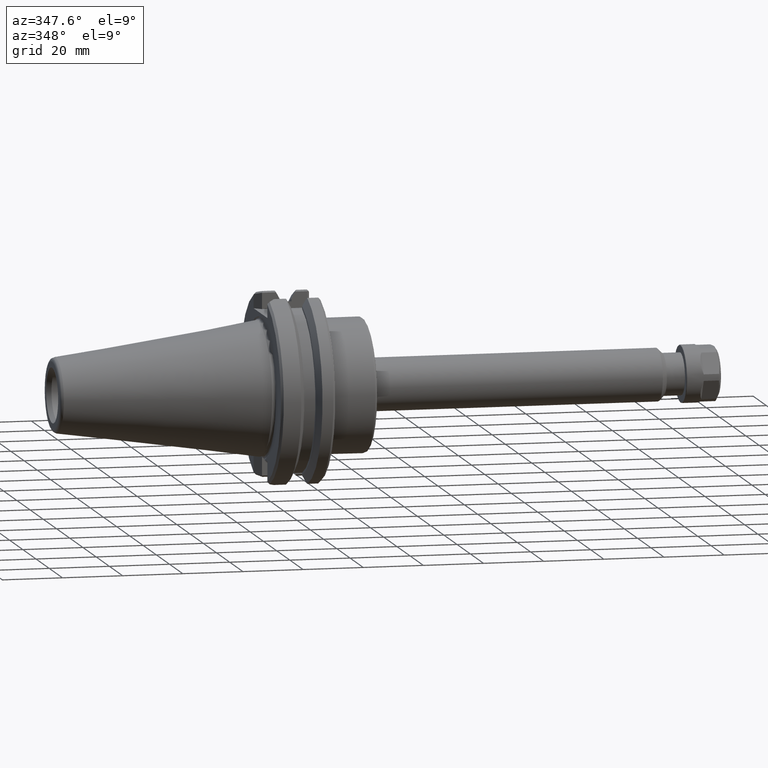
[diagram: clean part render]
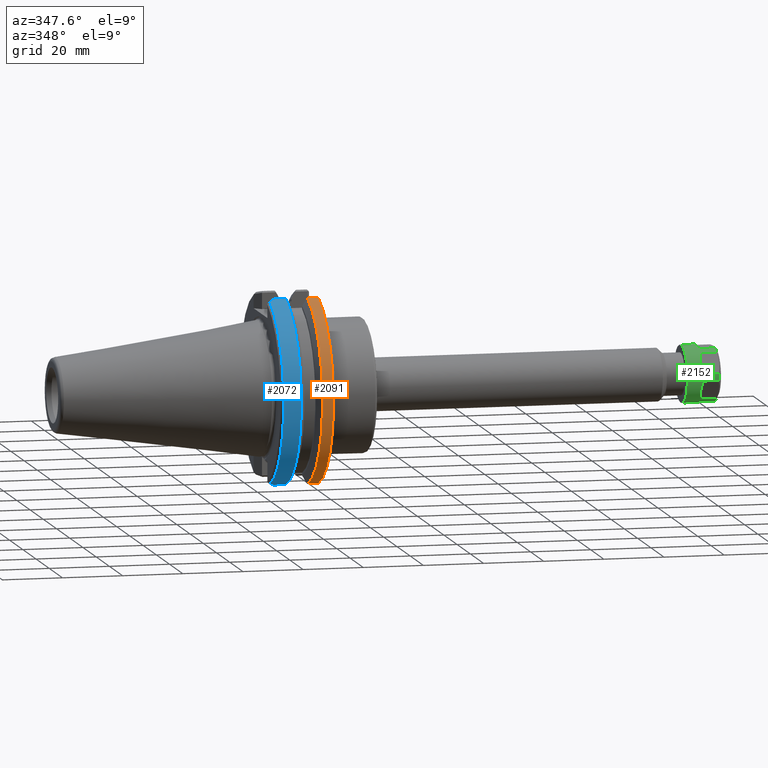
[diagram: same view with three faces highlighted in distinct colors, each labeled with its STEP entity id]
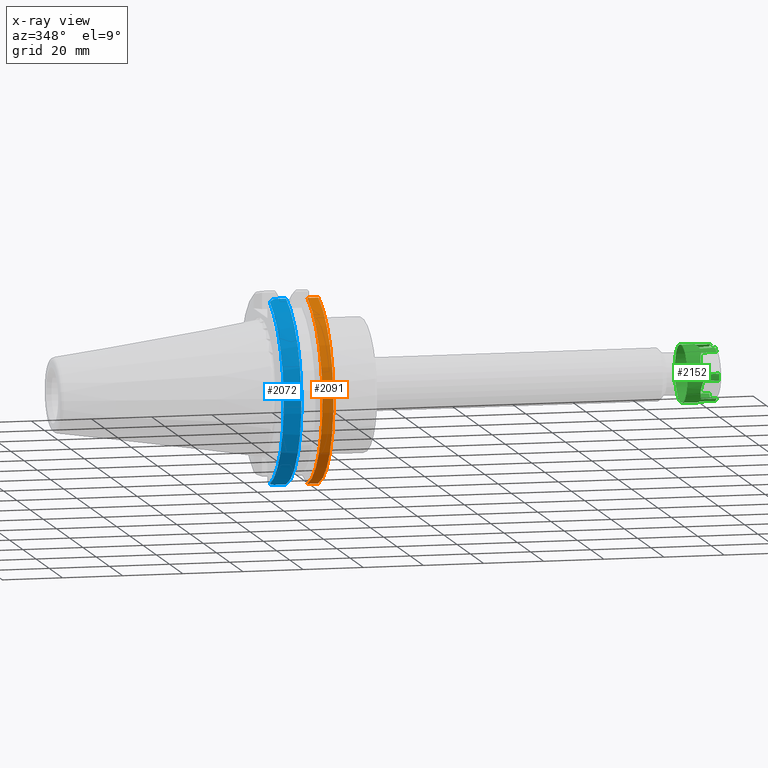
[diagram: x-ray of the same camera — body ghosted, the three highlighted faces saturated]
A machine part, auxiliary view with three faces highlighted in distinct colors.
The next image is the same camera in x-ray (body ghosted, the three faces saturated) — at least one of them is partly hidden behind the body in this view.
Their STEP definitions:

[orange] entity #2091 — the highlighted cylindrical surface (partial cylindrical patch) has radius 31.75 mm, axis along (1, 0, 0).
#135=CYLINDRICAL_SURFACE('',#2258,1.25);
#202=LINE('',#4090,#316);
#203=LINE('',#4098,#317);
#316=VECTOR('',#2625,0.142826127773348);
#317=VECTOR('',#2630,0.142826127773348);
#542=FACE_OUTER_BOUND('',#698,.T.);
#698=EDGE_LOOP('',(#1637,#1638,#1639,#1640));
#857=CIRCLE('',#2259,1.25);
#858=CIRCLE('',#2260,1.25);
#1039=VERTEX_POINT('',#4085);
#1040=VERTEX_POINT('',#4089);
#1041=VERTEX_POINT('',#4095);
#1042=VERTEX_POINT('',#4097);
#1274=EDGE_CURVE('',#1039,#1040,#202,.T.);
#1276=EDGE_CURVE('',#1041,#1039,#857,.T.);
#1277=EDGE_CURVE('',#1042,#1041,#203,.T.);
#1278=EDGE_CURVE('',#1042,#1040,#858,.T.);
#1637=ORIENTED_EDGE('',*,*,#1274,.F.);
#1638=ORIENTED_EDGE('',*,*,#1276,.F.);
#1639=ORIENTED_EDGE('',*,*,#1277,.F.);
#1640=ORIENTED_EDGE('',*,*,#1278,.T.);
#2091=ADVANCED_FACE('',(#542),#135,.T.);
#2258=AXIS2_PLACEMENT_3D('',#4094,#2626,#2627);
#2259=AXIS2_PLACEMENT_3D('',#4096,#2628,#2629);
#2260=AXIS2_PLACEMENT_3D('',#4099,#2631,#2632);
#2625=DIRECTION('',(-1.,0.,0.));
#2626=DIRECTION('center_axis',(1.,0.,0.));
#2627=DIRECTION('ref_axis',(-1.62451355720802E-13,1.,0.));
#2628=DIRECTION('center_axis',(1.,0.,0.));
#2629=DIRECTION('ref_axis',(1.62451355720802E-13,-1.,0.));
#2630=DIRECTION('',(1.,0.,0.));
#2631=DIRECTION('center_axis',(1.,0.,0.));
#2632=DIRECTION('ref_axis',(-1.62451355720802E-13,1.,0.));
#4085=CARTESIAN_POINT('',(0.72,-0.339628138321241,-1.20297661143534));
#4089=CARTESIAN_POINT('',(0.577173872226652,-0.339628138321241,-1.20297661143534));
#4090=CARTESIAN_POINT('',(0.3949,-0.339628138321241,-1.20297661143534));
#4094=CARTESIAN_POINT('Origin',(0.3949,0.,0.));
#4095=CARTESIAN_POINT('',(0.72,-0.339628138321233,1.20297661143534));
#4096=CARTESIAN_POINT('Origin',(0.72,0.,0.));
#4097=CARTESIAN_POINT('',(0.577173872226652,-0.339628138321233,1.20297661143534));
#4098=CARTESIAN_POINT('',(0.3949,-0.339628138321233,1.20297661143534));
#4099=CARTESIAN_POINT('Origin',(0.577173872226652,0.,0.));

[blue] entity #2072 — the highlighted cylindrical surface (partial cylindrical patch) has radius 31.75 mm, axis along (1, 0, 0).
#133=CYLINDRICAL_SURFACE('',#2235,1.25);
#162=LINE('',#3600,#276);
#163=LINE('',#3604,#277);
#276=VECTOR('',#2541,0.159597161674143);
#277=VECTOR('',#2544,0.159597161674194);
#523=FACE_OUTER_BOUND('',#676,.T.);
#676=EDGE_LOOP('',(#1522,#1523,#1524,#1525,#1526,#1527));
#849=CIRCLE('',#2233,1.25);
#851=CIRCLE('',#2236,1.25);
#933=B_SPLINE_CURVE_WITH_KNOTS('',3,(#3542,#3543,#3544,#3545,#3546,#3547,
#3548,#3549,#3550,#3551,#3552,#3553,#3554,#3555,#3556,#3557,#3558,#3559,
#3560,#3561,#3562,#3563,#3564,#3565,#3566,#3567,#3568,#3569,#3570,#3571),
 .UNSPECIFIED.,.F.,.F.,(4,2,2,2,2,2,2,2,2,2,2,2,2,2,4),(-0.0522227980911079,
0.,0.0122537437452531,0.024502935585128,0.0367475313027496,0.0489874867959797,
0.061222758078536,0.073453301281127,0.0856790726525604,0.0979000285608856,
0.110116125494511,0.122327320063341,0.134533568999907,0.146734829160502,
0.201199831019126),.UNSPECIFIED.);
#935=B_SPLINE_CURVE_WITH_KNOTS('',3,(#3605,#3606,#3607,#3608,#3609,#3610,
#3611,#3612,#3613,#3614,#3615,#3616,#3617,#3618,#3619,#3620,#3621,#3622,
#3623,#3624,#3625,#3626,#3627,#3628,#3629,#3630,#3631,#3632,#3633,#3634),
 .UNSPECIFIED.,.F.,.F.,(4,2,2,2,2,2,2,2,2,2,2,2,2,2,4),(-0.0544650018586125,
0.,0.0122012601605769,0.0244075090971253,0.036618703665939,0.0488348005995456,
0.0610557565078532,0.07328152787927,0.0855120710818425,0.0977473423643818,
0.109987297857596,0.122231893575198,0.134481085415057,0.146734829160291,
0.198957627251415),.UNSPECIFIED.);
#984=VERTEX_POINT('',#3490);
#988=VERTEX_POINT('',#3535);
#992=VERTEX_POINT('',#3583);
#995=VERTEX_POINT('',#3599);
#996=VERTEX_POINT('',#3601);
#997=VERTEX_POINT('',#3603);
#1201=EDGE_CURVE('',#988,#984,#933,.T.);
#1206=EDGE_CURVE('',#984,#992,#849,.T.);
#1210=EDGE_CURVE('',#995,#988,#162,.T.);
#1211=EDGE_CURVE('',#995,#996,#851,.T.);
#1212=EDGE_CURVE('',#997,#996,#163,.T.);
#1213=EDGE_CURVE('',#992,#997,#935,.T.);
#1522=ORIENTED_EDGE('',*,*,#1201,.F.);
#1523=ORIENTED_EDGE('',*,*,#1210,.F.);
#1524=ORIENTED_EDGE('',*,*,#1211,.T.);
#1525=ORIENTED_EDGE('',*,*,#1212,.F.);
#1526=ORIENTED_EDGE('',*,*,#1213,.F.);
#1527=ORIENTED_EDGE('',*,*,#1206,.F.);
#2072=ADVANCED_FACE('',(#523),#133,.T.);
#2233=AXIS2_PLACEMENT_3D('',#3584,#2535,#2536);
#2235=AXIS2_PLACEMENT_3D('',#3598,#2539,#2540);
#2236=AXIS2_PLACEMENT_3D('',#3602,#2542,#2543);
#2535=DIRECTION('center_axis',(-1.,0.,0.));
#2536=DIRECTION('ref_axis',(1.62451355720802E-13,-1.,0.));
#2539=DIRECTION('center_axis',(1.,0.,0.));
#2540=DIRECTION('ref_axis',(-1.62451355720802E-13,1.,0.));
#2541=DIRECTION('',(-1.,0.,0.));
#2542=DIRECTION('center_axis',(-1.,0.,0.));
#2543=DIRECTION('ref_axis',(-1.62451355720802E-13,1.,0.));
#2544=DIRECTION('',(1.,0.,0.));
#3490=CARTESIAN_POINT('',(0.0698000001421842,-0.408458681238645,-1.18138118561317));
#3535=CARTESIAN_POINT('',(0.139928966099218,-0.339628138324565,-1.2029766114344));
#3542=CARTESIAN_POINT('Ctrl Pts',(0.139928966090103,-0.339628138337144,
-1.20297661152056));
#3543=CARTESIAN_POINT('Ctrl Pts',(0.135092466600187,-0.344382624246985,
-1.20163431041355));
#3544=CARTESIAN_POINT('Ctrl Pts',(0.13025979112037,-0.349131802536587,-1.20026307500953));
#3545=CARTESIAN_POINT('Ctrl Pts',(0.12429790156704,-0.354988776584822,-1.19853423635086));
#3546=CARTESIAN_POINT('Ctrl Pts',(0.123165058288499,-0.356101599266152,
-1.19820407233199));
#3547=CARTESIAN_POINT('Ctrl Pts',(0.120900220392618,-0.358326240593862,
-1.19754066831512));
#3548=CARTESIAN_POINT('Ctrl Pts',(0.119768224263555,-0.359438060835858,
-1.19720742906323));
#3549=CARTESIAN_POINT('Ctrl Pts',(0.117505087520742,-0.36166069075308,-1.1965378771845));
#3550=CARTESIAN_POINT('Ctrl Pts',(0.116373947283123,-0.362771500103949,
-1.19620156592129));
#3551=CARTESIAN_POINT('Ctrl Pts',(0.114112531235474,-0.364992099616482,
-1.19552587332897));
#3552=CARTESIAN_POINT('Ctrl Pts',(0.11298225515231,-0.366101890114686,-1.19518649317789));
#3553=CARTESIAN_POINT('Ctrl Pts',(0.110722576124309,-0.368320443507243,
-1.19450466607977));
#3554=CARTESIAN_POINT('Ctrl Pts',(0.109593173043197,-0.369429206599435,
-1.19416222036711));
#3555=CARTESIAN_POINT('Ctrl Pts',(0.107335248591373,-0.371645696909308,
-1.19347426539971));
#3556=CARTESIAN_POINT('Ctrl Pts',(0.106206727040039,-0.372753424370409,
-1.19312875737799));
#3557=CARTESIAN_POINT('Ctrl Pts',(0.10395057426239,-0.37496783510702,-1.19243468108303));
#3558=CARTESIAN_POINT('Ctrl Pts',(0.102822942864953,-0.376074518616768,
-1.1920861140587));
#3559=CARTESIAN_POINT('Ctrl Pts',(0.100568579027038,-0.378286833124849,
-1.19138592307926));
#3560=CARTESIAN_POINT('Ctrl Pts',(0.0994418463987543,-0.379392464374863,
-1.19103430038062));
#3561=CARTESIAN_POINT('Ctrl Pts',(0.0971892885599236,-0.38160266621453,
-1.19032800134196));
#3562=CARTESIAN_POINT('Ctrl Pts',(0.0960634631991265,-0.382707237018144,
-1.18997332628317));
#3563=CARTESIAN_POINT('Ctrl Pts',(0.093812728843037,-0.384915309323739,
-1.1892609259968));
#3564=CARTESIAN_POINT('Ctrl Pts',(0.0926878195529379,-0.386018811187149,
-1.18890320201783));
#3565=CARTESIAN_POINT('Ctrl Pts',(0.0904389248872701,-0.388224738395965,
-1.18818470692276));
#3566=CARTESIAN_POINT('Ctrl Pts',(0.0893149398577045,-0.389327163451712,
-1.18782393728978));
#3567=CARTESIAN_POINT('Ctrl Pts',(0.0870679042763588,-0.391530926767374,
-1.18709935491009));
#3568=CARTESIAN_POINT('Ctrl Pts',(0.0859448521625858,-0.392632266677618,
-1.18673554315703));
#3569=CARTESIAN_POINT('Ctrl Pts',(0.0798099292078542,-0.398648117029378,
-1.18473899804746));
#3570=CARTESIAN_POINT('Ctrl Pts',(0.0748025734051189,-0.403556589459569,
-1.18307607072522));
#3571=CARTESIAN_POINT('Ctrl Pts',(0.069799999791613,-0.40845868173122,-1.18138118811451));
#3583=CARTESIAN_POINT('',(0.0698000001421838,-0.40845868123859,1.18138118561319));
#3584=CARTESIAN_POINT('Origin',(0.0698,0.,0.));
#3598=CARTESIAN_POINT('Origin',(0.3949,0.,0.));
#3599=CARTESIAN_POINT('',(0.299526127773361,-0.339628138321223,-1.20297661143534));
#3600=CARTESIAN_POINT('',(0.3949,-0.339628138321223,-1.20297661143534));
#3601=CARTESIAN_POINT('',(0.299526127773361,-0.339628138321233,1.20297661143534));
#3602=CARTESIAN_POINT('Origin',(0.299526127773361,0.,0.));
#3603=CARTESIAN_POINT('',(0.139928966099167,-0.339628138324575,1.2029766114344));
#3604=CARTESIAN_POINT('',(0.3949,-0.339628138321233,1.20297661143534));
#3605=CARTESIAN_POINT('Ctrl Pts',(0.0697999997916123,-0.408458681731163,
1.18138118811452));
#3606=CARTESIAN_POINT('Ctrl Pts',(0.0748025734051171,-0.403556589459512,
1.18307607072523));
#3607=CARTESIAN_POINT('Ctrl Pts',(0.0798099292078514,-0.398648117029321,
1.18473899804747));
#3608=CARTESIAN_POINT('Ctrl Pts',(0.0859448521625807,-0.392632266677565,
1.18673554315703));
#3609=CARTESIAN_POINT('Ctrl Pts',(0.0870679042763522,-0.391530926767322,
1.18709935491009));
#3610=CARTESIAN_POINT('Ctrl Pts',(0.0893149398576948,-0.389327163451663,
1.18782393728977));
#3611=CARTESIAN_POINT('Ctrl Pts',(0.0904389248872589,-0.388224738395918,
1.18818470692275));
#3612=CARTESIAN_POINT('Ctrl Pts',(0.0926878195529237,-0.386018811187105,
1.18890320201783));
#3613=CARTESIAN_POINT('Ctrl Pts',(0.0938127288430213,-0.384915309323697,
1.1892609259968));
#3614=CARTESIAN_POINT('Ctrl Pts',(0.0960634631991077,-0.382707237018105,
1.18997332628317));
#3615=CARTESIAN_POINT('Ctrl Pts',(0.0971892885599034,-0.381602666214493,
1.19032800134195));
#3616=CARTESIAN_POINT('Ctrl Pts',(0.0994418463987309,-0.379392464374829,
1.19103430038061));
#3617=CARTESIAN_POINT('Ctrl Pts',(0.100568579027013,-0.378286833124817,
1.19138592307925));
#3618=CARTESIAN_POINT('Ctrl Pts',(0.102822942864926,-0.37607451861674,1.19208611405869));
#3619=CARTESIAN_POINT('Ctrl Pts',(0.103950574262361,-0.374967835106993,
1.19243468108301));
#3620=CARTESIAN_POINT('Ctrl Pts',(0.106206727040007,-0.372753424370385,
1.19312875737798));
#3621=CARTESIAN_POINT('Ctrl Pts',(0.107335248591339,-0.371645696909286,
1.1934742653997));
#3622=CARTESIAN_POINT('Ctrl Pts',(0.109593173043161,-0.369429206599416,
1.1941622203671));
#3623=CARTESIAN_POINT('Ctrl Pts',(0.110722576124271,-0.368320443507226,
1.19450466607976));
#3624=CARTESIAN_POINT('Ctrl Pts',(0.112982255152269,-0.366101890114672,
1.19518649317788));
#3625=CARTESIAN_POINT('Ctrl Pts',(0.114112531235431,-0.364992099616471,
1.19552587332895));
#3626=CARTESIAN_POINT('Ctrl Pts',(0.116373947283078,-0.362771500103941,
1.19620156592128));
#3627=CARTESIAN_POINT('Ctrl Pts',(0.117505087520695,-0.361660690753073,
1.19653787718448));
#3628=CARTESIAN_POINT('Ctrl Pts',(0.119768224263505,-0.359438060835855,
1.19720742906321));
#3629=CARTESIAN_POINT('Ctrl Pts',(0.120900220392566,-0.35832624059386,1.1975406683151));
#3630=CARTESIAN_POINT('Ctrl Pts',(0.123165058288445,-0.356101599266155,
1.19820407233197));
#3631=CARTESIAN_POINT('Ctrl Pts',(0.124297901566984,-0.354988776584827,
1.19853423635084));
#3632=CARTESIAN_POINT('Ctrl Pts',(0.130259791120314,-0.349131802536594,
1.20026307500951));
#3633=CARTESIAN_POINT('Ctrl Pts',(0.135092466600135,-0.344382624246995,
1.20163431041355));
#3634=CARTESIAN_POINT('Ctrl Pts',(0.139928966090052,-0.339628138337154,
1.20297661152056));

[green] entity #2152 — the highlighted cylindrical surface (bore or boss wall) has radius 9.525 mm, axis along (-1, -0, 0).
#23=ELLIPSE('',#2366,0.53033008588991,0.375);
#24=ELLIPSE('',#2368,0.53033008588991,0.375);
#25=ELLIPSE('',#2370,0.53033008588991,0.375);
#26=ELLIPSE('',#2372,0.53033008588991,0.375);
#27=ELLIPSE('',#2374,0.53033008588991,0.375);
#28=ELLIPSE('',#2376,0.53033008588991,0.375);
#144=CYLINDRICAL_SURFACE('',#2364,0.375);
#245=LINE('',#4415,#359);
#246=LINE('',#4419,#360);
#247=LINE('',#4423,#361);
#248=LINE('',#4427,#362);
#249=LINE('',#4431,#363);
#250=LINE('',#4435,#364);
#251=LINE('',#4439,#365);
#252=LINE('',#4443,#366);
#253=LINE('',#4447,#367);
#254=LINE('',#4451,#368);
#255=LINE('',#4455,#369);
#256=LINE('',#4459,#370);
#359=VECTOR('',#2882,0.2);
#360=VECTOR('',#2885,0.2);
#361=VECTOR('',#2888,0.2);
#362=VECTOR('',#2891,0.2);
#363=VECTOR('',#2894,0.2);
#364=VECTOR('',#2897,0.2);
#365=VECTOR('',#2900,0.2);
#366=VECTOR('',#2903,0.2);
#367=VECTOR('',#2906,0.2);
#368=VECTOR('',#2909,0.2);
#369=VECTOR('',#2912,0.2);
#370=VECTOR('',#2915,0.2);
#480=FACE_BOUND('',#780,.T.);
#603=FACE_OUTER_BOUND('',#779,.T.);
#779=EDGE_LOOP('',(#1906,#1907,#1908,#1909,#1910,#1911,#1912,#1913,#1914,
#1915,#1916,#1917,#1918,#1919,#1920,#1921,#1922,#1923,#1924,#1925,#1926,
#1927,#1928,#1929));
#780=EDGE_LOOP('',(#1930));
#897=CIRCLE('',#2360,0.375);
#900=CIRCLE('',#2365,0.375);
#901=CIRCLE('',#2367,0.375);
#902=CIRCLE('',#2369,0.375);
#903=CIRCLE('',#2371,0.375);
#904=CIRCLE('',#2373,0.375);
#905=CIRCLE('',#2375,0.375);
#1110=VERTEX_POINT('',#4405);
#1113=VERTEX_POINT('',#4413);
#1114=VERTEX_POINT('',#4414);
#1115=VERTEX_POINT('',#4416);
#1116=VERTEX_POINT('',#4418);
#1117=VERTEX_POINT('',#4420);
#1118=VERTEX_POINT('',#4422);
#1119=VERTEX_POINT('',#4424);
#1120=VERTEX_POINT('',#4426);
#1121=VERTEX_POINT('',#4428);
#1122=VERTEX_POINT('',#4430);
#1123=VERTEX_POINT('',#4432);
#1124=VERTEX_POINT('',#4434);
#1125=VERTEX_POINT('',#4436);
#1126=VERTEX_POINT('',#4438);
#1127=VERTEX_POINT('',#4440);
#1128=VERTEX_POINT('',#4442);
#1129=VERTEX_POINT('',#4444);
#1130=VERTEX_POINT('',#4446);
#1131=VERTEX_POINT('',#4448);
#1132=VERTEX_POINT('',#4450);
#1133=VERTEX_POINT('',#4452);
#1134=VERTEX_POINT('',#4454);
#1135=VERTEX_POINT('',#4456);
#1136=VERTEX_POINT('',#4458);
#1384=EDGE_CURVE('',#1110,#1110,#897,.T.);
#1387=EDGE_CURVE('',#1113,#1114,#245,.T.);
#1388=EDGE_CURVE('',#1114,#1115,#900,.T.);
#1389=EDGE_CURVE('',#1115,#1116,#246,.T.);
#1390=EDGE_CURVE('',#1116,#1117,#23,.T.);
#1391=EDGE_CURVE('',#1117,#1118,#247,.T.);
#1392=EDGE_CURVE('',#1118,#1119,#901,.T.);
#1393=EDGE_CURVE('',#1119,#1120,#248,.T.);
#1394=EDGE_CURVE('',#1120,#1121,#24,.T.);
#1395=EDGE_CURVE('',#1121,#1122,#249,.T.);
#1396=EDGE_CURVE('',#1122,#1123,#902,.T.);
#1397=EDGE_CURVE('',#1123,#1124,#250,.T.);
#1398=EDGE_CURVE('',#1124,#1125,#25,.T.);
#1399=EDGE_CURVE('',#1125,#1126,#251,.T.);
#1400=EDGE_CURVE('',#1126,#1127,#903,.T.);
#1401=EDGE_CURVE('',#1127,#1128,#252,.T.);
#1402=EDGE_CURVE('',#1128,#1129,#26,.T.);
#1403=EDGE_CURVE('',#1129,#1130,#253,.T.);
#1404=EDGE_CURVE('',#1130,#1131,#904,.T.);
#1405=EDGE_CURVE('',#1131,#1132,#254,.T.);
#1406=EDGE_CURVE('',#1132,#1133,#27,.T.);
#1407=EDGE_CURVE('',#1133,#1134,#255,.T.);
#1408=EDGE_CURVE('',#1134,#1135,#905,.T.);
#1409=EDGE_CURVE('',#1135,#1136,#256,.T.);
#1410=EDGE_CURVE('',#1136,#1113,#28,.T.);
#1906=ORIENTED_EDGE('',*,*,#1387,.T.);
#1907=ORIENTED_EDGE('',*,*,#1388,.T.);
#1908=ORIENTED_EDGE('',*,*,#1389,.T.);
#1909=ORIENTED_EDGE('',*,*,#1390,.T.);
#1910=ORIENTED_EDGE('',*,*,#1391,.T.);
#1911=ORIENTED_EDGE('',*,*,#1392,.T.);
#1912=ORIENTED_EDGE('',*,*,#1393,.T.);
#1913=ORIENTED_EDGE('',*,*,#1394,.T.);
#1914=ORIENTED_EDGE('',*,*,#1395,.T.);
#1915=ORIENTED_EDGE('',*,*,#1396,.T.);
#1916=ORIENTED_EDGE('',*,*,#1397,.T.);
#1917=ORIENTED_EDGE('',*,*,#1398,.T.);
#1918=ORIENTED_EDGE('',*,*,#1399,.T.);
#1919=ORIENTED_EDGE('',*,*,#1400,.T.);
#1920=ORIENTED_EDGE('',*,*,#1401,.T.);
#1921=ORIENTED_EDGE('',*,*,#1402,.T.);
#1922=ORIENTED_EDGE('',*,*,#1403,.T.);
#1923=ORIENTED_EDGE('',*,*,#1404,.T.);
#1924=ORIENTED_EDGE('',*,*,#1405,.T.);
#1925=ORIENTED_EDGE('',*,*,#1406,.T.);
#1926=ORIENTED_EDGE('',*,*,#1407,.T.);
#1927=ORIENTED_EDGE('',*,*,#1408,.T.);
#1928=ORIENTED_EDGE('',*,*,#1409,.T.);
#1929=ORIENTED_EDGE('',*,*,#1410,.T.);
#1930=ORIENTED_EDGE('',*,*,#1384,.F.);
#2152=ADVANCED_FACE('',(#603,#480),#144,.T.);
#2360=AXIS2_PLACEMENT_3D('',#4406,#2872,#2873);
#2364=AXIS2_PLACEMENT_3D('',#4412,#2880,#2881);
#2365=AXIS2_PLACEMENT_3D('',#4417,#2883,#2884);
#2366=AXIS2_PLACEMENT_3D('',#4421,#2886,#2887);
#2367=AXIS2_PLACEMENT_3D('',#4425,#2889,#2890);
#2368=AXIS2_PLACEMENT_3D('',#4429,#2892,#2893);
#2369=AXIS2_PLACEMENT_3D('',#4433,#2895,#2896);
#2370=AXIS2_PLACEMENT_3D('',#4437,#2898,#2899);
#2371=AXIS2_PLACEMENT_3D('',#4441,#2901,#2902);
#2372=AXIS2_PLACEMENT_3D('',#4445,#2904,#2905);
#2373=AXIS2_PLACEMENT_3D('',#4449,#2907,#2908);
#2374=AXIS2_PLACEMENT_3D('',#4453,#2910,#2911);
#2375=AXIS2_PLACEMENT_3D('',#4457,#2913,#2914);
#2376=AXIS2_PLACEMENT_3D('',#4460,#2916,#2917);
#2872=DIRECTION('center_axis',(1.,0.,0.));
#2873=DIRECTION('ref_axis',(0.,-1.,1.22460635382238E-16));
#2880=DIRECTION('center_axis',(1.,0.,0.));
#2881=DIRECTION('ref_axis',(0.,1.,0.));
#2882=DIRECTION('',(-1.,0.,0.));
#2883=DIRECTION('center_axis',(1.,0.,0.));
#2884=DIRECTION('ref_axis',(0.,1.,0.));
#2885=DIRECTION('',(1.,0.,0.));
#2886=DIRECTION('center_axis',(0.707106781186548,-0.353553390593273,0.612372435695795));
#2887=DIRECTION('ref_axis',(0.707106781186547,0.353553390593273,-0.612372435695795));
#2888=DIRECTION('',(-1.,0.,0.));
#2889=DIRECTION('center_axis',(1.,0.,0.));
#2890=DIRECTION('ref_axis',(0.,1.,0.));
#2891=DIRECTION('',(1.,0.,0.));
#2892=DIRECTION('center_axis',(0.707106781186548,-0.707106781186547,0.));
#2893=DIRECTION('ref_axis',(0.707106781186547,0.707106781186548,0.));
#2894=DIRECTION('',(-1.,0.,0.));
#2895=DIRECTION('center_axis',(1.,0.,0.));
#2896=DIRECTION('ref_axis',(0.,1.,0.));
#2897=DIRECTION('',(1.,0.,0.));
#2898=DIRECTION('center_axis',(0.707106781186548,-0.353553390593274,-0.612372435695794));
#2899=DIRECTION('ref_axis',(0.707106781186547,0.353553390593274,0.612372435695794));
#2900=DIRECTION('',(-1.,0.,0.));
#2901=DIRECTION('center_axis',(1.,0.,0.));
#2902=DIRECTION('ref_axis',(0.,1.,0.));
#2903=DIRECTION('',(1.,0.,0.));
#2904=DIRECTION('center_axis',(0.707106781186548,0.353553390593274,-0.612372435695794));
#2905=DIRECTION('ref_axis',(-0.707106781186547,0.353553390593274,-0.612372435695795));
#2906=DIRECTION('',(-1.,0.,0.));
#2907=DIRECTION('center_axis',(1.,0.,0.));
#2908=DIRECTION('ref_axis',(0.,1.,0.));
#2909=DIRECTION('',(1.,0.,0.));
#2910=DIRECTION('center_axis',(0.707106781186548,0.707106781186547,-8.65927457071935E-17));
#2911=DIRECTION('ref_axis',(-0.707106781186547,0.707106781186548,0.));
#2912=DIRECTION('',(-1.,0.,0.));
#2913=DIRECTION('center_axis',(1.,0.,0.));
#2914=DIRECTION('ref_axis',(0.,1.,0.));
#2915=DIRECTION('',(1.,0.,0.));
#2916=DIRECTION('center_axis',(0.707106781186548,0.353553390593274,0.612372435695794));
#2917=DIRECTION('ref_axis',(-0.707106781186547,0.353553390593274,0.612372435695794));
#4405=CARTESIAN_POINT('',(0.455,0.375,0.));
#4406=CARTESIAN_POINT('Origin',(0.455,0.,0.));
#4412=CARTESIAN_POINT('Origin',(0.2525,0.,0.));
#4413=CARTESIAN_POINT('',(0.24,-0.0427067287133629,-0.372560243883594));
#4414=CARTESIAN_POINT('',(0.04,-0.0427067287133629,-0.372560243883594));
#4415=CARTESIAN_POINT('',(0.2525,-0.042706728713363,-0.372560243883594));
#4416=CARTESIAN_POINT('',(0.04,0.0427067287133625,-0.372560243883594));
#4417=CARTESIAN_POINT('Origin',(0.04,0.,0.));
#4418=CARTESIAN_POINT('',(0.24,0.0427067287133625,-0.372560243883594));
#4419=CARTESIAN_POINT('',(0.2525,0.0427067287133625,-0.372560243883594));
#4420=CARTESIAN_POINT('',(0.24,0.301293271286637,-0.2232652339201));
#4421=CARTESIAN_POINT('Origin',(-0.104,0.,0.));
#4422=CARTESIAN_POINT('',(0.04,0.301293271286637,-0.2232652339201));
#4423=CARTESIAN_POINT('',(0.2525,0.301293271286637,-0.2232652339201));
#4424=CARTESIAN_POINT('',(0.04,0.344,-0.149295009963495));
#4425=CARTESIAN_POINT('Origin',(0.04,0.,0.));
#4426=CARTESIAN_POINT('',(0.24,0.344,-0.149295009963495));
#4427=CARTESIAN_POINT('',(0.2525,0.344,-0.149295009963495));
#4428=CARTESIAN_POINT('',(0.24,0.344,0.149295009963495));
#4429=CARTESIAN_POINT('Origin',(-0.104,0.,0.));
#4430=CARTESIAN_POINT('',(0.04,0.344,0.149295009963495));
#4431=CARTESIAN_POINT('',(0.2525,0.344,0.149295009963495));
#4432=CARTESIAN_POINT('',(0.04,0.301293271286637,0.2232652339201));
#4433=CARTESIAN_POINT('Origin',(0.04,0.,0.));
#4434=CARTESIAN_POINT('',(0.24,0.301293271286637,0.2232652339201));
#4435=CARTESIAN_POINT('',(0.2525,0.301293271286637,0.2232652339201));
#4436=CARTESIAN_POINT('',(0.24,0.0427067287133628,0.372560243883594));
#4437=CARTESIAN_POINT('Origin',(-0.104,0.,0.));
#4438=CARTESIAN_POINT('',(0.04,0.0427067287133628,0.372560243883594));
#4439=CARTESIAN_POINT('',(0.2525,0.0427067287133629,0.372560243883594));
#4440=CARTESIAN_POINT('',(0.04,-0.0427067287133626,0.372560243883594));
#4441=CARTESIAN_POINT('Origin',(0.04,0.,0.));
#4442=CARTESIAN_POINT('',(0.24,-0.0427067287133626,0.372560243883594));
#4443=CARTESIAN_POINT('',(0.2525,-0.0427067287133628,0.372560243883594));
#4444=CARTESIAN_POINT('',(0.24,-0.301293271286637,0.2232652339201));
#4445=CARTESIAN_POINT('Origin',(-0.104,0.,0.));
#4446=CARTESIAN_POINT('',(0.04,-0.301293271286637,0.2232652339201));
#4447=CARTESIAN_POINT('',(0.2525,-0.301293271286637,0.2232652339201));
#4448=CARTESIAN_POINT('',(0.04,-0.344,0.149295009963495));
#4449=CARTESIAN_POINT('Origin',(0.04,0.,0.));
#4450=CARTESIAN_POINT('',(0.24,-0.344,0.149295009963495));
#4451=CARTESIAN_POINT('',(0.2525,-0.344,0.149295009963495));
#4452=CARTESIAN_POINT('',(0.24,-0.344,-0.149295009963495));
#4453=CARTESIAN_POINT('Origin',(-0.104,0.,0.));
#4454=CARTESIAN_POINT('',(0.04,-0.344,-0.149295009963495));
#4455=CARTESIAN_POINT('',(0.2525,-0.344,-0.149295009963495));
#4456=CARTESIAN_POINT('',(0.04,-0.301293271286637,-0.223265233920099));
#4457=CARTESIAN_POINT('Origin',(0.04,0.,0.));
#4458=CARTESIAN_POINT('',(0.24,-0.301293271286637,-0.223265233920099));
#4459=CARTESIAN_POINT('',(0.2525,-0.301293271286637,-0.2232652339201));
#4460=CARTESIAN_POINT('Origin',(-0.104,0.,0.));